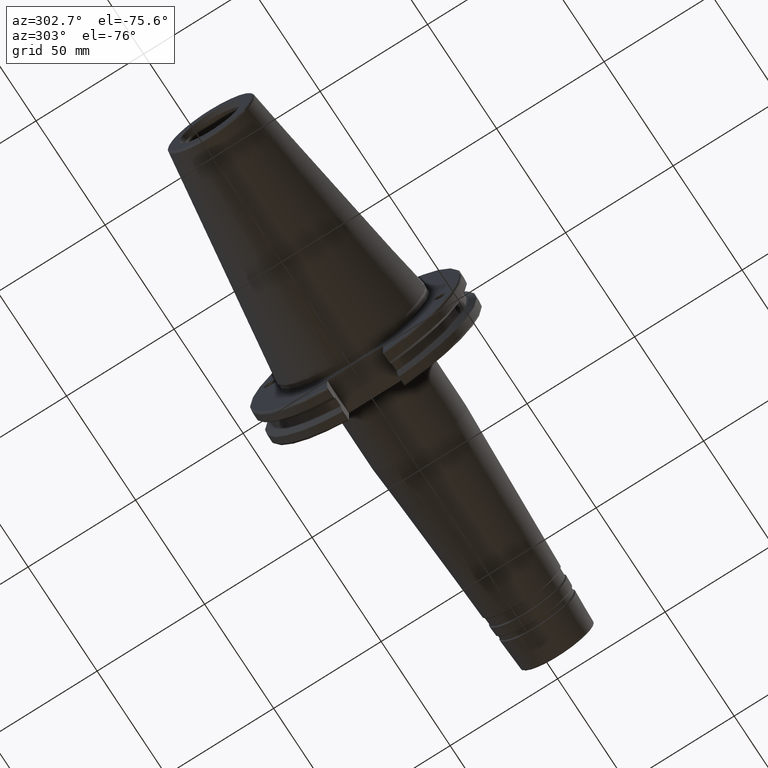
[diagram: clean part render]
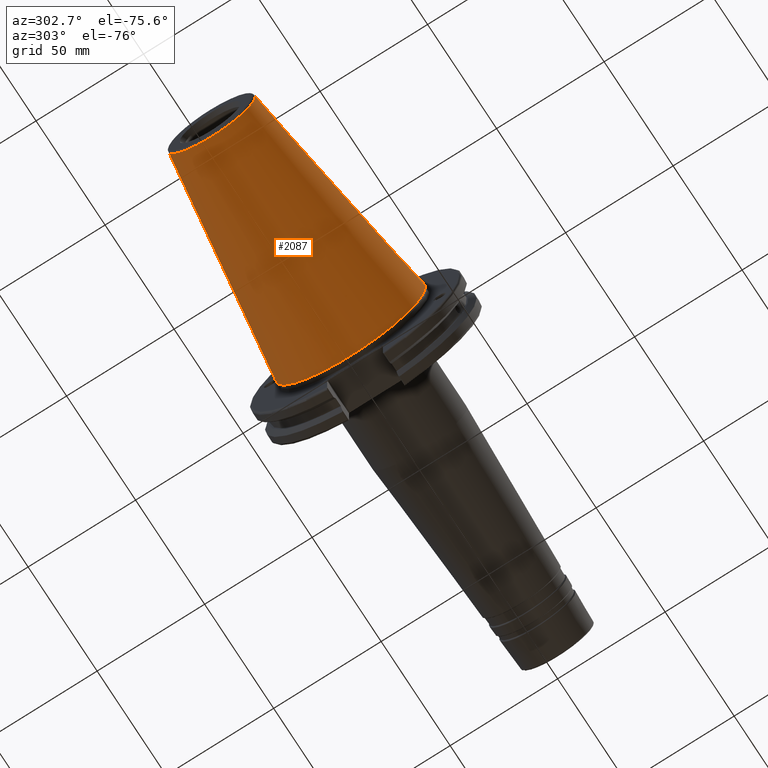
[diagram: same view with one face highlighted and labeled with its STEP entity id]
A machine part, auxiliary view. The second image highlights one B-rep face of the part: STEP entity #2087.
In plain terms, the highlighted conical surface has half-angle 8.297 deg.
Its self-contained STEP definition (entity closure, byte-faithful):
#103=CONICAL_SURFACE('',#2365,27.5166666666666,0.14481249823894);
#242=FACE_OUTER_BOUND('',#364,.T.);
#364=EDGE_LOOP('',(#1839,#1840,#1841,#1842,#1843,#1844,#1845));
#477=LINE('',#4121,#579);
#579=VECTOR('',#2959,27.5166666666666);
#743=CIRCLE('',#2356,20.233121911427);
#744=CIRCLE('',#2357,20.233121911427);
#748=CIRCLE('',#2361,20.233121911427);
#751=CIRCLE('',#2366,34.925);
#752=CIRCLE('',#2367,34.925);
#980=VERTEX_POINT('',#4100);
#981=VERTEX_POINT('',#4101);
#982=VERTEX_POINT('',#4103);
#987=VERTEX_POINT('',#4117);
#988=VERTEX_POINT('',#4118);
#1283=EDGE_CURVE('',#980,#981,#743,.T.);
#1284=EDGE_CURVE('',#981,#982,#744,.T.);
#1288=EDGE_CURVE('',#982,#980,#748,.T.);
#1291=EDGE_CURVE('',#987,#988,#751,.T.);
#1292=EDGE_CURVE('',#988,#987,#752,.T.);
#1293=EDGE_CURVE('',#988,#981,#477,.T.);
#1839=ORIENTED_EDGE('',*,*,#1291,.F.);
#1840=ORIENTED_EDGE('',*,*,#1292,.F.);
#1841=ORIENTED_EDGE('',*,*,#1293,.T.);
#1842=ORIENTED_EDGE('',*,*,#1283,.F.);
#1843=ORIENTED_EDGE('',*,*,#1288,.F.);
#1844=ORIENTED_EDGE('',*,*,#1284,.F.);
#1845=ORIENTED_EDGE('',*,*,#1293,.F.);
#2087=ADVANCED_FACE('',(#242),#103,.T.);
#2356=AXIS2_PLACEMENT_3D('',#4102,#2935,#2936);
#2357=AXIS2_PLACEMENT_3D('',#4104,#2937,#2938);
#2361=AXIS2_PLACEMENT_3D('',#4110,#2945,#2946);
#2365=AXIS2_PLACEMENT_3D('',#4116,#2953,#2954);
#2366=AXIS2_PLACEMENT_3D('',#4119,#2955,#2956);
#2367=AXIS2_PLACEMENT_3D('',#4120,#2957,#2958);
#2935=DIRECTION('center_axis',(-1.,0.,0.));
#2936=DIRECTION('ref_axis',(0.,-1.,3.06161699786838E-17));
#2937=DIRECTION('center_axis',(-1.,0.,0.));
#2938=DIRECTION('ref_axis',(0.,-1.,3.06161699786838E-17));
#2945=DIRECTION('center_axis',(-1.,0.,0.));
#2946=DIRECTION('ref_axis',(0.,-1.,3.06161699786838E-17));
#2953=DIRECTION('center_axis',(1.,0.,0.));
#2954=DIRECTION('ref_axis',(0.,1.,0.));
#2955=DIRECTION('center_axis',(1.,0.,0.));
#2956=DIRECTION('ref_axis',(0.,0.,-1.));
#2957=DIRECTION('center_axis',(1.,0.,0.));
#2958=DIRECTION('ref_axis',(0.,0.,-1.));
#2959=DIRECTION('',(-0.989532981063281,0.144306893071729,1.76724974695192E-17));
#4100=CARTESIAN_POINT('',(-100.744306893072,20.233121911427,-6.19460699639681E-15));
#4101=CARTESIAN_POINT('',(-100.744306893072,-20.233121911427,-2.47784279855872E-15));
#4102=CARTESIAN_POINT('Origin',(-100.744306893072,0.,-3.09730349819841E-15));
#4103=CARTESIAN_POINT('',(-100.744306893072,-2.47784279855872E-15,20.233121911427));
#4104=CARTESIAN_POINT('Origin',(-100.744306893072,0.,-3.09730349819841E-15));
#4110=CARTESIAN_POINT('Origin',(-100.744306893072,0.,-3.09730349819841E-15));
#4116=CARTESIAN_POINT('Origin',(-50.8,0.,0.));
#4117=CARTESIAN_POINT('',(0.,34.925,0.));
#4118=CARTESIAN_POINT('',(-8.88178419700125E-15,-34.925,-4.27707894602213E-15));
#4119=CARTESIAN_POINT('Origin',(0.,0.,0.));
#4120=CARTESIAN_POINT('Origin',(0.,0.,0.));
#4121=CARTESIAN_POINT('',(-50.8,-27.5166666666666,-3.3698197756538E-15));